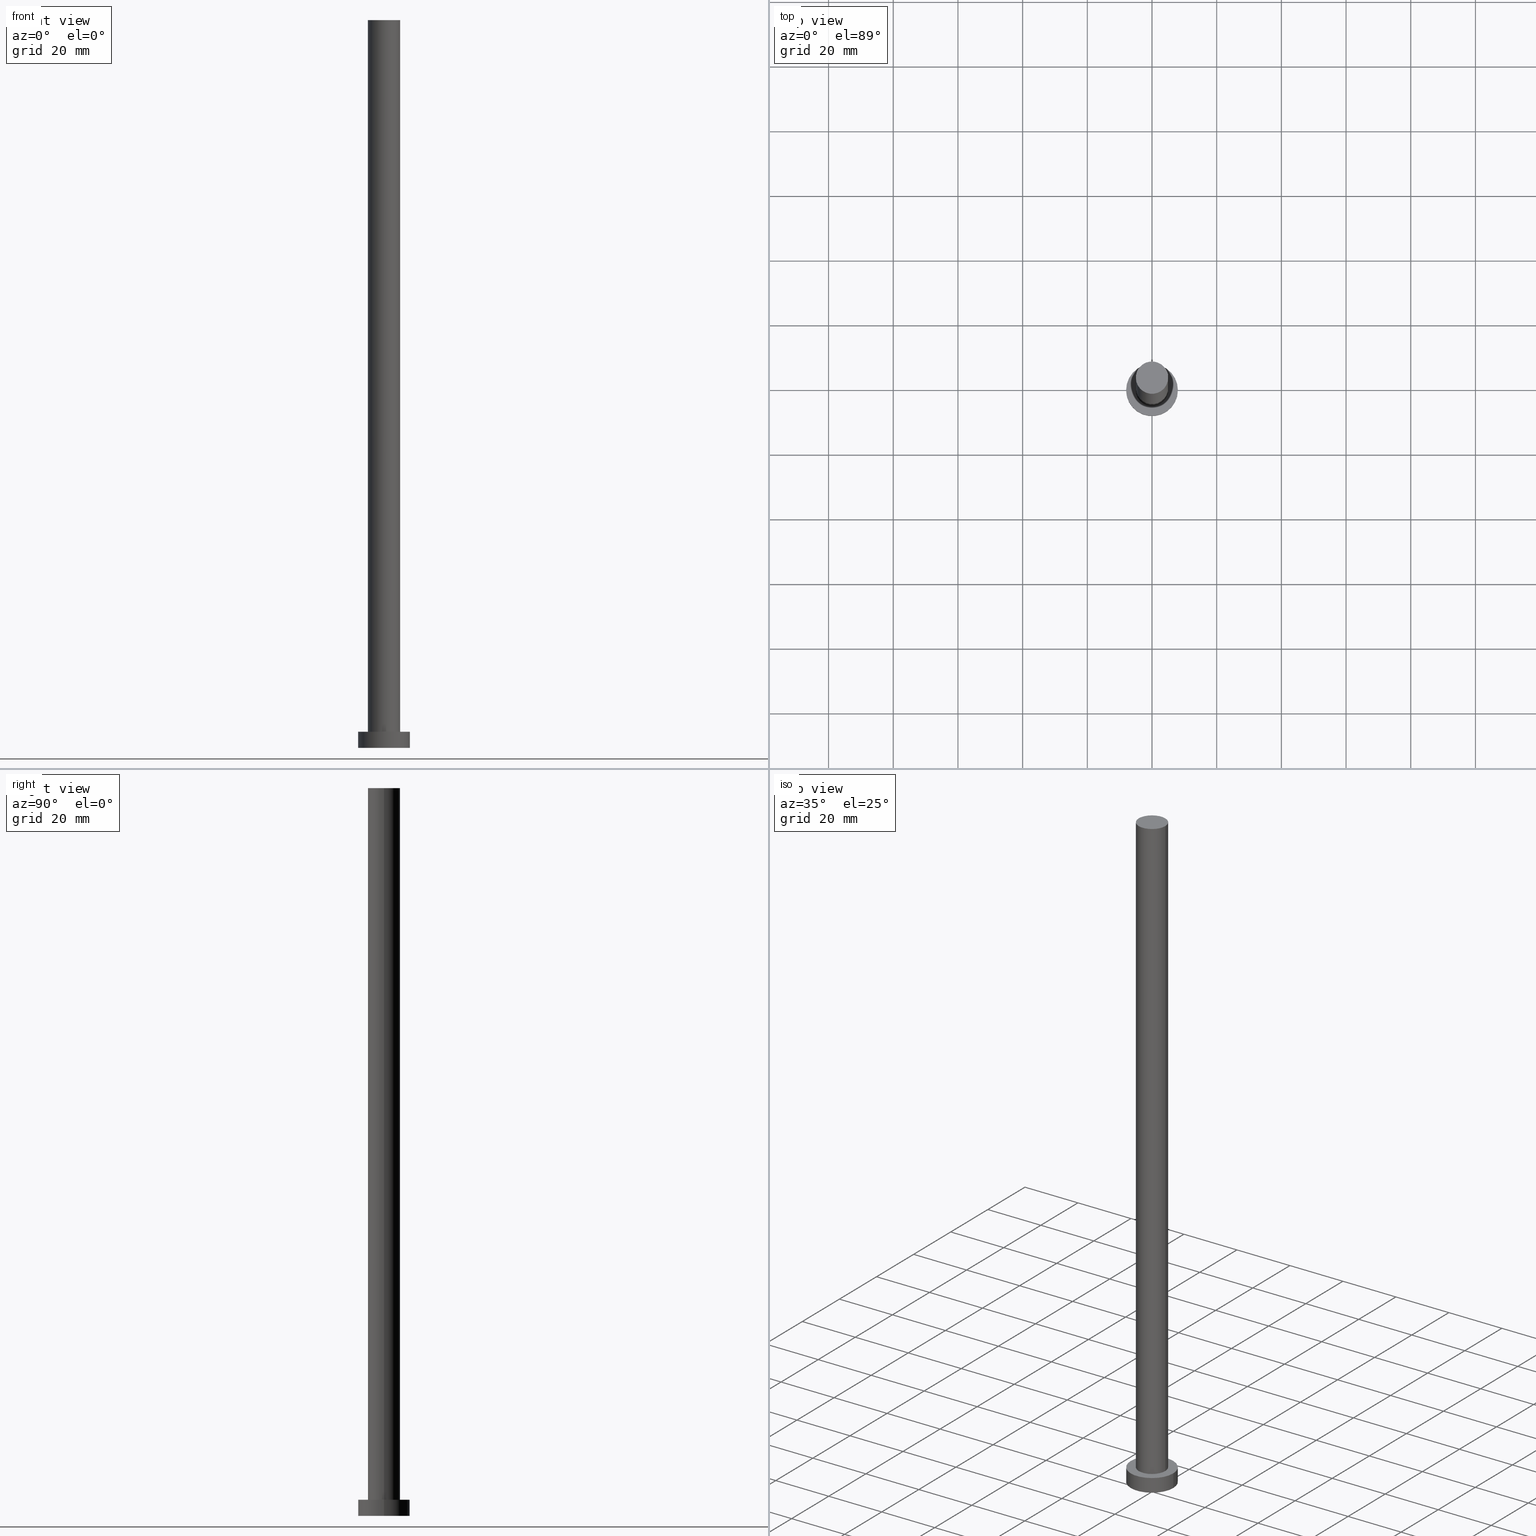
[diagram: canonical four-view strip — front | top / right | iso, engineering-drawing reading convention]
A machine part, canonical four-view strip (front | top / right | iso — engineering-drawing reading convention). The complete STEP part file that produces these views, byte-faithful:
ISO-10303-21;
HEADER;
FILE_DESCRIPTION (( 'STEP AP203' ),
    '1' );
FILE_NAME ('d13f.STEP',
    '2023-04-05T10:32:14',
    ( '' ),
    ( '' ),
    'SwSTEP 2.0',
    'SolidWorks 2019',
    '' );
FILE_SCHEMA (( 'CONFIG_CONTROL_DESIGN' ));
ENDSEC;

DATA;
#1 = DIRECTION ( 'NONE',  ( -1.000000000000000000, 0.000000000000000000, 0.000000000000000000 ) ) ;
#2 = DATE_AND_TIME ( #109, #147 ) ;
#3 = AXIS2_PLACEMENT_3D ( 'NONE', #37, #245, #104 ) ;
#4 = ADVANCED_BREP_SHAPE_REPRESENTATION ( 'd13f', ( #227, #65 ), #36 ) ;
#5 = SECURITY_CLASSIFICATION ( '', '', #88 ) ;
#6 = CARTESIAN_POINT ( 'NONE',  ( 0.000000000000000000, 0.000000000000000000, 5.000000000000000000 ) ) ;
#7 = PERSON_AND_ORGANIZATION ( #30, #177 ) ;
#8 = EDGE_LOOP ( 'NONE', ( #117, #28 ) ) ;
#9 = PERSON_AND_ORGANIZATION_ROLE ( 'classification_officer' ) ;
#10 = ORIENTED_EDGE ( 'NONE', *, *, #13, .T. ) ;
#11 = VECTOR ( 'NONE', #99, 1000.000000000000000 ) ;
#12 = APPLICATION_CONTEXT ( 'configuration controlled 3d designs of mechanical parts and assemblies' ) ;
#13 = EDGE_CURVE ( 'NONE', #219, #51, #251, .T. ) ;
#14 = CALENDAR_DATE ( 2023, 5, 4 ) ;
#15 = VERTEX_POINT ( 'NONE', #191 ) ;
#16 = LOCAL_TIME ( 12, 32, 14.00000000000000000, #148 ) ;
#17 = DIRECTION ( 'NONE',  ( 1.000000000000000000, 0.000000000000000000, -0.000000000000000000 ) ) ;
#18 = CARTESIAN_POINT ( 'NONE',  ( 8.000000000000000000, 9.797174393178825657E-16, 0.000000000000000000 ) ) ;
#19 = CARTESIAN_POINT ( 'NONE',  ( 0.000000000000000000, 0.000000000000000000, 5.000000000000000000 ) ) ;
#20 = DIRECTION ( 'NONE',  ( 0.000000000000000000, 0.000000000000000000, 1.000000000000000000 ) ) ;
#21 = APPLICATION_CONTEXT ( 'configuration controlled 3d designs of mechanical parts and assemblies' ) ;
#22 = CARTESIAN_POINT ( 'NONE',  ( 0.000000000000000000, 0.000000000000000000, 5.000000000000000000 ) ) ;
#23 = CARTESIAN_POINT ( 'NONE',  ( 5.000000000000000888, 6.123233995736767268E-16, 5.000000000000000000 ) ) ;
#24 = DATE_TIME_ROLE ( 'classification_date' ) ;
#25 = CARTESIAN_POINT ( 'NONE',  ( -5.000000000000000888, 0.000000000000000000, 5.000000000000000000 ) ) ;
#26 = EDGE_LOOP ( 'NONE', ( #205, #222, #129, #124 ) ) ;
#27 = PERSON_AND_ORGANIZATION_ROLE ( 'design_supplier' ) ;
#28 = ORIENTED_EDGE ( 'NONE', *, *, #231, .F. ) ;
#29 = DATE_AND_TIME ( #128, #16 ) ;
#30 = PERSON ( 'NEUR�EN�', 'NEUR�EN�', 'NEUR�EN�', ('NEUR�EN�'), ('NEUR�EN�'), ('NEUR�EN�') ) ;
#31 = LINE ( 'NONE', #190, #97 ) ;
#32 = EDGE_LOOP ( 'NONE', ( #62, #54, #239, #151 ) ) ;
#33 = EDGE_CURVE ( 'NONE', #166, #15, #69, .T. ) ;
#34 = DIRECTION ( 'NONE',  ( 1.000000000000000000, 0.000000000000000000, 0.000000000000000000 ) ) ;
#35 = VECTOR ( 'NONE', #218, 1000.000000000000000 ) ;
#36 =( GEOMETRIC_REPRESENTATION_CONTEXT ( 3 ) GLOBAL_UNCERTAINTY_ASSIGNED_CONTEXT ( ( #38 ) ) GLOBAL_UNIT_ASSIGNED_CONTEXT ( ( #211, #172, #247 ) ) REPRESENTATION_CONTEXT ( 'NONE', 'WORKASPACE' ) );
#37 = CARTESIAN_POINT ( 'NONE',  ( 0.000000000000000000, 0.000000000000000000, 5.000000000000000000 ) ) ;
#38 = UNCERTAINTY_MEASURE_WITH_UNIT (LENGTH_MEASURE( 1.000000000000000082E-05 ), #211, 'distance_accuracy_value', 'NONE');
#39 = CC_DESIGN_PERSON_AND_ORGANIZATION_ASSIGNMENT ( #183, #206, ( #193 ) ) ;
#40 = DIRECTION ( 'NONE',  ( 1.000000000000000000, 0.000000000000000000, 0.000000000000000000 ) ) ;
#41 = APPROVAL_PERSON_ORGANIZATION ( #7, #243, #201 ) ;
#42 = LINE ( 'NONE', #119, #52 ) ;
#43 = FACE_OUTER_BOUND ( 'NONE', #89, .T. ) ;
#44 = CC_DESIGN_PERSON_AND_ORGANIZATION_ASSIGNMENT ( #223, #9, ( #5 ) ) ;
#45 = AXIS2_PLACEMENT_3D ( 'NONE', #215, #235, #1 ) ;
#46 = CARTESIAN_POINT ( 'NONE',  ( 5.000000000000000888, 6.123233995736767268E-16, 225.0000000000000000 ) ) ;
#47 = APPROVAL_STATUS ( 'not_yet_approved' ) ;
#48 = CARTESIAN_POINT ( 'NONE',  ( 0.000000000000000000, 0.000000000000000000, 225.0000000000000000 ) ) ;
#49 = APPROVAL ( #236, 'NEUR�EN�' ) ;
#50 = APPROVAL_ROLE ( '' ) ;
#51 = VERTEX_POINT ( 'NONE', #174 ) ;
#52 = VECTOR ( 'NONE', #140, 1000.000000000000000 ) ;
#53 = AXIS2_PLACEMENT_3D ( 'NONE', #82, #234, #250 ) ;
#54 = ORIENTED_EDGE ( 'NONE', *, *, #225, .T. ) ;
#55 = APPLICATION_PROTOCOL_DEFINITION ( 'international standard', 'config_control_design', 1994, #21 ) ;
#56 = ORIENTED_EDGE ( 'NONE', *, *, #87, .T. ) ;
#57 = CALENDAR_DATE ( 2023, 5, 4 ) ;
#58 = EDGE_LOOP ( 'NONE', ( #95, #188 ) ) ;
#59 = ORIENTED_EDGE ( 'NONE', *, *, #231, .T. ) ;
#60 = AXIS2_PLACEMENT_3D ( 'NONE', #67, #200, #213 ) ;
#61 = EDGE_CURVE ( 'NONE', #219, #96, #77, .T. ) ;
#62 = ORIENTED_EDGE ( 'NONE', *, *, #84, .F. ) ;
#63 = CARTESIAN_POINT ( 'NONE',  ( 0.000000000000000000, 0.000000000000000000, 225.0000000000000000 ) ) ;
#64 = DIRECTION ( 'NONE',  ( 0.000000000000000000, 0.000000000000000000, 1.000000000000000000 ) ) ;
#65 = AXIS2_PLACEMENT_3D ( 'NONE', #114, #242, #145 ) ;
#66 = AXIS2_PLACEMENT_3D ( 'NONE', #101, #81, #132 ) ;
#67 = CARTESIAN_POINT ( 'NONE',  ( 0.000000000000000000, 0.000000000000000000, 225.0000000000000000 ) ) ;
#68 = DIRECTION ( 'NONE',  ( 0.000000000000000000, 0.000000000000000000, 1.000000000000000000 ) ) ;
#69 = CIRCLE ( 'NONE', #66, 5.000000000000000888 ) ;
#70 = COORDINATED_UNIVERSAL_TIME_OFFSET ( 1, 0, .AHEAD. ) ;
#71 = PLANE ( 'NONE',  #252 ) ;
#72 = CC_DESIGN_DATE_AND_TIME_ASSIGNMENT ( #29, #150, ( #193 ) ) ;
#73 = DIRECTION ( 'NONE',  ( -1.000000000000000000, 0.000000000000000000, 0.000000000000000000 ) ) ;
#74 = APPROVAL_DATE_TIME ( #185, #78 ) ;
#75 = PERSON_AND_ORGANIZATION ( #30, #177 ) ;
#76 = EDGE_CURVE ( 'NONE', #15, #166, #208, .T. ) ;
#77 = LINE ( 'NONE', #156, #11 ) ;
#78 = APPROVAL ( #94, 'NEUR�EN�' ) ;
#79 = AXIS2_PLACEMENT_3D ( 'NONE', #163, #20, #216 ) ;
#80 = LOCAL_TIME ( 12, 32, 14.00000000000000000, #70 ) ;
#81 = DIRECTION ( 'NONE',  ( 0.000000000000000000, 0.000000000000000000, 1.000000000000000000 ) ) ;
#82 = CARTESIAN_POINT ( 'NONE',  ( 0.000000000000000000, 0.000000000000000000, 225.0000000000000000 ) ) ;
#83 = DESIGN_CONTEXT ( 'detailed design', #21, 'design' ) ;
#84 = EDGE_CURVE ( 'NONE', #51, #219, #202, .T. ) ;
#85 = FACE_OUTER_BOUND ( 'NONE', #32, .T. ) ;
#86 = AXIS2_PLACEMENT_3D ( 'NONE', #189, #116, #17 ) ;
#87 = EDGE_CURVE ( 'NONE', #15, #146, #105, .T. ) ;
#88 = SECURITY_CLASSIFICATION_LEVEL ( 'unclassified' ) ;
#89 = EDGE_LOOP ( 'NONE', ( #168, #184, #59, #169 ) ) ;
#90 = ADVANCED_FACE ( 'NONE', ( #43 ), #195, .T. ) ;
#91 = ORIENTED_EDGE ( 'NONE', *, *, #84, .T. ) ;
#92 = PRODUCT_DEFINITION_FORMATION_WITH_SPECIFIED_SOURCE ( 'LIBOVOLN�', '', #255, .NOT_KNOWN. ) ;
#93 = VERTEX_POINT ( 'NONE', #23 ) ;
#94 = APPROVAL_STATUS ( 'not_yet_approved' ) ;
#95 = ORIENTED_EDGE ( 'NONE', *, *, #157, .F. ) ;
#96 = VERTEX_POINT ( 'NONE', #192 ) ;
#97 = VECTOR ( 'NONE', #226, 1000.000000000000000 ) ;
#98 = AXIS2_PLACEMENT_3D ( 'NONE', #19, #175, #34 ) ;
#99 = DIRECTION ( 'NONE',  ( -0.000000000000000000, -0.000000000000000000, -1.000000000000000000 ) ) ;
#100 = EDGE_CURVE ( 'NONE', #244, #96, #152, .T. ) ;
#101 = CARTESIAN_POINT ( 'NONE',  ( 0.000000000000000000, 0.000000000000000000, 225.0000000000000000 ) ) ;
#102 = CIRCLE ( 'NONE', #135, 5.000000000000000888 ) ;
#103 = CC_DESIGN_APPROVAL ( #243, ( #92 ) ) ;
#104 = DIRECTION ( 'NONE',  ( 1.000000000000000000, 0.000000000000000000, 0.000000000000000000 ) ) ;
#105 = LINE ( 'NONE', #230, #35 ) ;
#106 = CIRCLE ( 'NONE', #111, 5.000000000000000888 ) ;
#107 = CC_DESIGN_DATE_AND_TIME_ASSIGNMENT ( #165, #24, ( #5 ) ) ;
#108 = DIRECTION ( 'NONE',  ( 1.000000000000000000, 0.000000000000000000, 0.000000000000000000 ) ) ;
#109 = CALENDAR_DATE ( 2023, 5, 4 ) ;
#110 = CARTESIAN_POINT ( 'NONE',  ( 0.000000000000000000, 0.000000000000000000, 0.000000000000000000 ) ) ;
#111 = AXIS2_PLACEMENT_3D ( 'NONE', #214, #194, #176 ) ;
#112 = ORIENTED_EDGE ( 'NONE', *, *, #76, .T. ) ;
#113 = COORDINATED_UNIVERSAL_TIME_OFFSET ( 1, 0, .AHEAD. ) ;
#114 = CARTESIAN_POINT ( 'NONE',  ( 0.000000000000000000, 0.000000000000000000, 0.000000000000000000 ) ) ;
#115 = CC_DESIGN_PERSON_AND_ORGANIZATION_ASSIGNMENT ( #75, #27, ( #92 ) ) ;
#116 = DIRECTION ( 'NONE',  ( 0.000000000000000000, 0.000000000000000000, 1.000000000000000000 ) ) ;
#117 = ORIENTED_EDGE ( 'NONE', *, *, #131, .F. ) ;
#118 = AXIS2_PLACEMENT_3D ( 'NONE', #63, #136, #40 ) ;
#119 = CARTESIAN_POINT ( 'NONE',  ( 8.000000000000000000, 9.797174393178825657E-16, 5.000000000000000000 ) ) ;
#120 = CYLINDRICAL_SURFACE ( 'NONE', #45, 8.000000000000000000 ) ;
#121 = DATE_AND_TIME ( #14, #160 ) ;
#122 = CARTESIAN_POINT ( 'NONE',  ( 0.000000000000000000, 0.000000000000000000, 0.000000000000000000 ) ) ;
#123 = MECHANICAL_CONTEXT ( 'NONE', #12, 'mechanical' ) ;
#124 = ORIENTED_EDGE ( 'NONE', *, *, #157, .T. ) ;
#125 = CC_DESIGN_APPROVAL ( #78, ( #193 ) ) ;
#126 = PERSON_AND_ORGANIZATION ( #30, #177 ) ;
#127 = ORIENTED_EDGE ( 'NONE', *, *, #76, .F. ) ;
#128 = CALENDAR_DATE ( 2023, 5, 4 ) ;
#129 = ORIENTED_EDGE ( 'NONE', *, *, #61, .T. ) ;
#130 = PERSON_AND_ORGANIZATION_ROLE ( 'design_owner' ) ;
#131 = EDGE_CURVE ( 'NONE', #146, #93, #102, .T. ) ;
#132 = DIRECTION ( 'NONE',  ( 1.000000000000000000, 0.000000000000000000, 0.000000000000000000 ) ) ;
#133 = CC_DESIGN_PERSON_AND_ORGANIZATION_ASSIGNMENT ( #203, #199, ( #92 ) ) ;
#134 = PLANE ( 'NONE',  #86 ) ;
#135 = AXIS2_PLACEMENT_3D ( 'NONE', #22, #68, #141 ) ;
#136 = DIRECTION ( 'NONE',  ( 0.000000000000000000, 0.000000000000000000, 1.000000000000000000 ) ) ;
#137 = ADVANCED_FACE ( 'NONE', ( #142 ), #159, .F. ) ;
#138 = DIRECTION ( 'NONE',  ( 1.000000000000000000, 0.000000000000000000, -0.000000000000000000 ) ) ;
#139 = CLOSED_SHELL ( 'NONE', ( #90, #173, #238, #246, #137, #204, #198 ) ) ;
#140 = DIRECTION ( 'NONE',  ( -0.000000000000000000, -0.000000000000000000, -1.000000000000000000 ) ) ;
#141 = DIRECTION ( 'NONE',  ( 1.000000000000000000, 0.000000000000000000, 0.000000000000000000 ) ) ;
#142 = FACE_OUTER_BOUND ( 'NONE', #58, .T. ) ;
#143 = PERSON_AND_ORGANIZATION ( #30, #177 ) ;
#144 = FACE_OUTER_BOUND ( 'NONE', #224, .T. ) ;
#145 = DIRECTION ( 'NONE',  ( 1.000000000000000000, 0.000000000000000000, 0.000000000000000000 ) ) ;
#146 = VERTEX_POINT ( 'NONE', #25 ) ;
#147 = LOCAL_TIME ( 12, 32, 14.00000000000000000, #217 ) ;
#148 = COORDINATED_UNIVERSAL_TIME_OFFSET ( 1, 0, .AHEAD. ) ;
#149 = EDGE_LOOP ( 'NONE', ( #112, #241 ) ) ;
#150 = DATE_TIME_ROLE ( 'creation_date' ) ;
#151 = ORIENTED_EDGE ( 'NONE', *, *, #61, .F. ) ;
#152 = CIRCLE ( 'NONE', #210, 8.000000000000000000 ) ;
#153 = AXIS2_PLACEMENT_3D ( 'NONE', #110, #158, #178 ) ;
#154 = CC_DESIGN_APPROVAL ( #49, ( #5 ) ) ;
#155 = EDGE_LOOP ( 'NONE', ( #10, #91 ) ) ;
#156 = CARTESIAN_POINT ( 'NONE',  ( -8.000000000000000000, 0.000000000000000000, 5.000000000000000000 ) ) ;
#157 = EDGE_CURVE ( 'NONE', #96, #244, #186, .T. ) ;
#158 = DIRECTION ( 'NONE',  ( 0.000000000000000000, 0.000000000000000000, 1.000000000000000000 ) ) ;
#159 = PLANE ( 'NONE',  #153 ) ;
#160 = LOCAL_TIME ( 12, 32, 14.00000000000000000, #164 ) ;
#161 = PRODUCT_RELATED_PRODUCT_CATEGORY ( 'detail', '', ( #255 ) ) ;
#162 = APPLICATION_PROTOCOL_DEFINITION ( 'international standard', 'config_control_design', 1994, #12 ) ;
#163 = CARTESIAN_POINT ( 'NONE',  ( 0.000000000000000000, 0.000000000000000000, 0.000000000000000000 ) ) ;
#164 = COORDINATED_UNIVERSAL_TIME_OFFSET ( 1, 0, .AHEAD. ) ;
#165 = DATE_AND_TIME ( #220, #80 ) ;
#166 = VERTEX_POINT ( 'NONE', #46 ) ;
#167 = APPROVAL_ROLE ( '' ) ;
#168 = ORIENTED_EDGE ( 'NONE', *, *, #33, .F. ) ;
#169 = ORIENTED_EDGE ( 'NONE', *, *, #87, .F. ) ;
#170 = APPROVAL_DATE_TIME ( #121, #243 ) ;
#171 = FACE_OUTER_BOUND ( 'NONE', #155, .T. ) ;
#172 =( NAMED_UNIT ( * ) PLANE_ANGLE_UNIT ( ) SI_UNIT ( $, .RADIAN. ) );
#173 = ADVANCED_FACE ( 'NONE', ( #85 ), #120, .T. ) ;
#174 = CARTESIAN_POINT ( 'NONE',  ( 8.000000000000000000, 9.797174393178825657E-16, 5.000000000000000000 ) ) ;
#175 = DIRECTION ( 'NONE',  ( 0.000000000000000000, 0.000000000000000000, 1.000000000000000000 ) ) ;
#176 = DIRECTION ( 'NONE',  ( 1.000000000000000000, 0.000000000000000000, 0.000000000000000000 ) ) ;
#177 = ORGANIZATION ( 'NEUR�EN�', 'NEUR�EN�', '' ) ;
#178 = DIRECTION ( 'NONE',  ( 1.000000000000000000, 0.000000000000000000, -0.000000000000000000 ) ) ;
#179 = APPROVAL_DATE_TIME ( #2, #49 ) ;
#180 = CC_DESIGN_SECURITY_CLASSIFICATION ( #5, ( #92 ) ) ;
#181 = PERSON_AND_ORGANIZATION ( #30, #177 ) ;
#182 = ORIENTED_EDGE ( 'NONE', *, *, #249, .F. ) ;
#183 = PERSON_AND_ORGANIZATION ( #30, #177 ) ;
#184 = ORIENTED_EDGE ( 'NONE', *, *, #249, .T. ) ;
#185 = DATE_AND_TIME ( #57, #232 ) ;
#186 = CIRCLE ( 'NONE', #79, 8.000000000000000000 ) ;
#187 = ORIENTED_EDGE ( 'NONE', *, *, #131, .T. ) ;
#188 = ORIENTED_EDGE ( 'NONE', *, *, #100, .F. ) ;
#189 = CARTESIAN_POINT ( 'NONE',  ( 0.000000000000000000, 0.000000000000000000, 5.000000000000000000 ) ) ;
#190 = CARTESIAN_POINT ( 'NONE',  ( 5.000000000000000888, 6.123233995736767268E-16, 225.0000000000000000 ) ) ;
#191 = CARTESIAN_POINT ( 'NONE',  ( -5.000000000000000888, 0.000000000000000000, 225.0000000000000000 ) ) ;
#192 = CARTESIAN_POINT ( 'NONE',  ( -8.000000000000000000, 0.000000000000000000, 0.000000000000000000 ) ) ;
#193 = PRODUCT_DEFINITION ( 'NEZN�M�', '', #92, #83 ) ;
#194 = DIRECTION ( 'NONE',  ( 0.000000000000000000, 0.000000000000000000, 1.000000000000000000 ) ) ;
#195 = CYLINDRICAL_SURFACE ( 'NONE', #53, 5.000000000000000888 ) ;
#196 = AXIS2_PLACEMENT_3D ( 'NONE', #6, #237, #73 ) ;
#197 = FACE_OUTER_BOUND ( 'NONE', #149, .T. ) ;
#198 = ADVANCED_FACE ( 'NONE', ( #197 ), #71, .T. ) ;
#199 = PERSON_AND_ORGANIZATION_ROLE ( 'creator' ) ;
#200 = DIRECTION ( 'NONE',  ( -0.000000000000000000, -0.000000000000000000, -1.000000000000000000 ) ) ;
#201 = APPROVAL_ROLE ( '' ) ;
#202 = CIRCLE ( 'NONE', #98, 8.000000000000000000 ) ;
#203 = PERSON_AND_ORGANIZATION ( #30, #177 ) ;
#204 = ADVANCED_FACE ( 'NONE', ( #144 ), #233, .T. ) ;
#205 = ORIENTED_EDGE ( 'NONE', *, *, #225, .F. ) ;
#206 = PERSON_AND_ORGANIZATION_ROLE ( 'creator' ) ;
#207 = CYLINDRICAL_SURFACE ( 'NONE', #196, 8.000000000000000000 ) ;
#208 = CIRCLE ( 'NONE', #118, 5.000000000000000888 ) ;
#209 = CC_DESIGN_PERSON_AND_ORGANIZATION_ASSIGNMENT ( #181, #130, ( #255 ) ) ;
#210 = AXIS2_PLACEMENT_3D ( 'NONE', #122, #254, #108 ) ;
#211 =( LENGTH_UNIT ( ) NAMED_UNIT ( * ) SI_UNIT ( .MILLI., .METRE. ) );
#212 = FACE_BOUND ( 'NONE', #8, .T. ) ;
#213 = DIRECTION ( 'NONE',  ( -1.000000000000000000, 0.000000000000000000, 0.000000000000000000 ) ) ;
#214 = CARTESIAN_POINT ( 'NONE',  ( 0.000000000000000000, 0.000000000000000000, 5.000000000000000000 ) ) ;
#215 = CARTESIAN_POINT ( 'NONE',  ( 0.000000000000000000, 0.000000000000000000, 5.000000000000000000 ) ) ;
#216 = DIRECTION ( 'NONE',  ( 1.000000000000000000, 0.000000000000000000, 0.000000000000000000 ) ) ;
#217 = COORDINATED_UNIVERSAL_TIME_OFFSET ( 1, 0, .AHEAD. ) ;
#218 = DIRECTION ( 'NONE',  ( -0.000000000000000000, -0.000000000000000000, -1.000000000000000000 ) ) ;
#219 = VERTEX_POINT ( 'NONE', #248 ) ;
#220 = CALENDAR_DATE ( 2023, 5, 4 ) ;
#221 = APPROVAL_PERSON_ORGANIZATION ( #126, #78, #167 ) ;
#222 = ORIENTED_EDGE ( 'NONE', *, *, #13, .F. ) ;
#223 = PERSON_AND_ORGANIZATION ( #30, #177 ) ;
#224 = EDGE_LOOP ( 'NONE', ( #182, #127, #56, #187 ) ) ;
#225 = EDGE_CURVE ( 'NONE', #51, #244, #42, .T. ) ;
#226 = DIRECTION ( 'NONE',  ( -0.000000000000000000, -0.000000000000000000, -1.000000000000000000 ) ) ;
#227 = MANIFOLD_SOLID_BREP ( 'P�idat vysunut�m3', #139 ) ;
#228 = PRODUCT_DEFINITION_SHAPE ( 'NONE', 'NONE',  #193 ) ;
#229 = APPROVAL_PERSON_ORGANIZATION ( #143, #49, #50 ) ;
#230 = CARTESIAN_POINT ( 'NONE',  ( -5.000000000000000888, 0.000000000000000000, 225.0000000000000000 ) ) ;
#231 = EDGE_CURVE ( 'NONE', #93, #146, #106, .T. ) ;
#232 = LOCAL_TIME ( 12, 32, 14.00000000000000000, #113 ) ;
#233 = CYLINDRICAL_SURFACE ( 'NONE', #60, 5.000000000000000888 ) ;
#234 = DIRECTION ( 'NONE',  ( -0.000000000000000000, -0.000000000000000000, -1.000000000000000000 ) ) ;
#235 = DIRECTION ( 'NONE',  ( -0.000000000000000000, -0.000000000000000000, -1.000000000000000000 ) ) ;
#236 = APPROVAL_STATUS ( 'not_yet_approved' ) ;
#237 = DIRECTION ( 'NONE',  ( -0.000000000000000000, -0.000000000000000000, -1.000000000000000000 ) ) ;
#238 = ADVANCED_FACE ( 'NONE', ( #253 ), #207, .T. ) ;
#239 = ORIENTED_EDGE ( 'NONE', *, *, #100, .T. ) ;
#240 = SHAPE_DEFINITION_REPRESENTATION ( #228, #4 ) ;
#241 = ORIENTED_EDGE ( 'NONE', *, *, #33, .T. ) ;
#242 = DIRECTION ( 'NONE',  ( 0.000000000000000000, 0.000000000000000000, 1.000000000000000000 ) ) ;
#243 = APPROVAL ( #47, 'NEUR�EN�' ) ;
#244 = VERTEX_POINT ( 'NONE', #18 ) ;
#245 = DIRECTION ( 'NONE',  ( 0.000000000000000000, 0.000000000000000000, 1.000000000000000000 ) ) ;
#246 = ADVANCED_FACE ( 'NONE', ( #212, #171 ), #134, .T. ) ;
#247 =( NAMED_UNIT ( * ) SI_UNIT ( $, .STERADIAN. ) SOLID_ANGLE_UNIT ( ) );
#248 = CARTESIAN_POINT ( 'NONE',  ( -8.000000000000000000, 0.000000000000000000, 5.000000000000000000 ) ) ;
#249 = EDGE_CURVE ( 'NONE', #166, #93, #31, .T. ) ;
#250 = DIRECTION ( 'NONE',  ( -1.000000000000000000, 0.000000000000000000, 0.000000000000000000 ) ) ;
#251 = CIRCLE ( 'NONE', #3, 8.000000000000000000 ) ;
#252 = AXIS2_PLACEMENT_3D ( 'NONE', #48, #64, #138 ) ;
#253 = FACE_OUTER_BOUND ( 'NONE', #26, .T. ) ;
#254 = DIRECTION ( 'NONE',  ( 0.000000000000000000, 0.000000000000000000, 1.000000000000000000 ) ) ;
#255 = PRODUCT ( 'd13f', 'd13f', '', ( #123 ) ) ;
ENDSEC;
END-ISO-10303-21;
